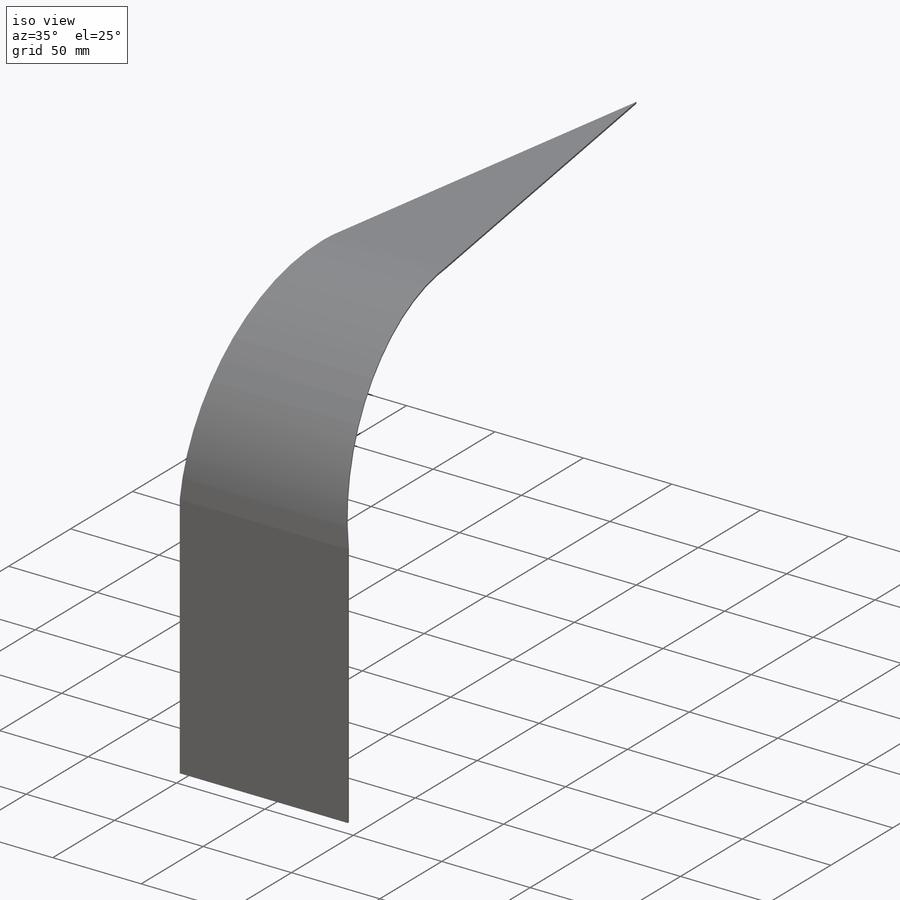
[diagram: iso view]
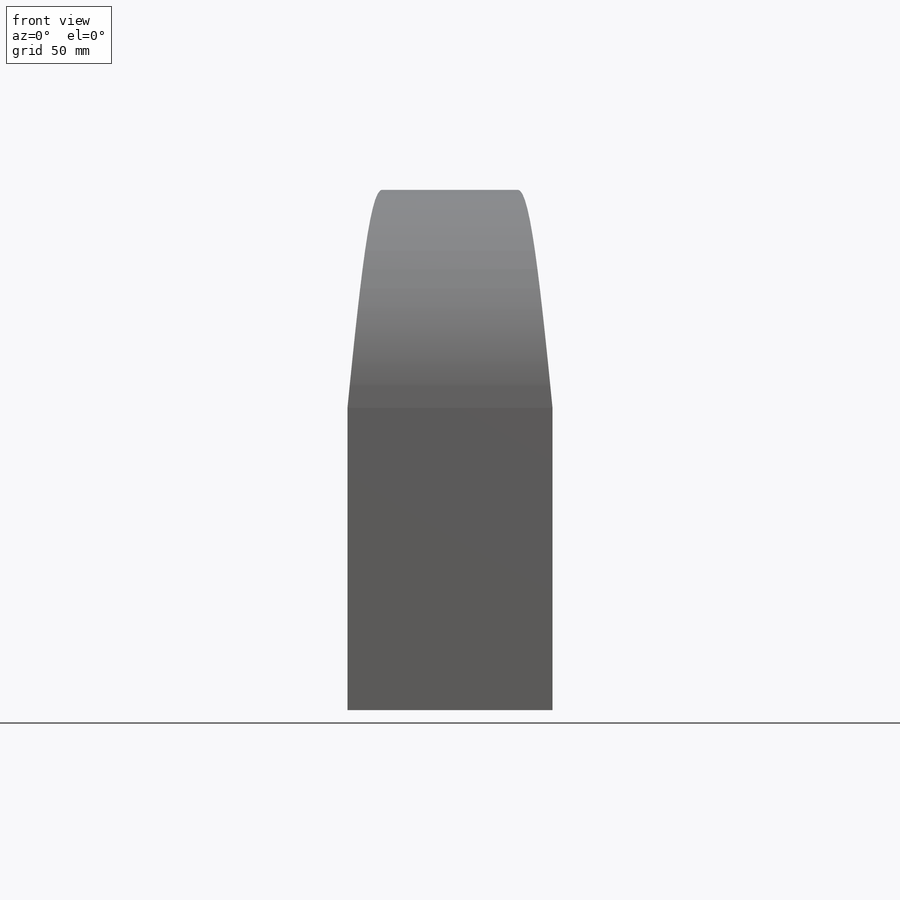
[diagram: front view]
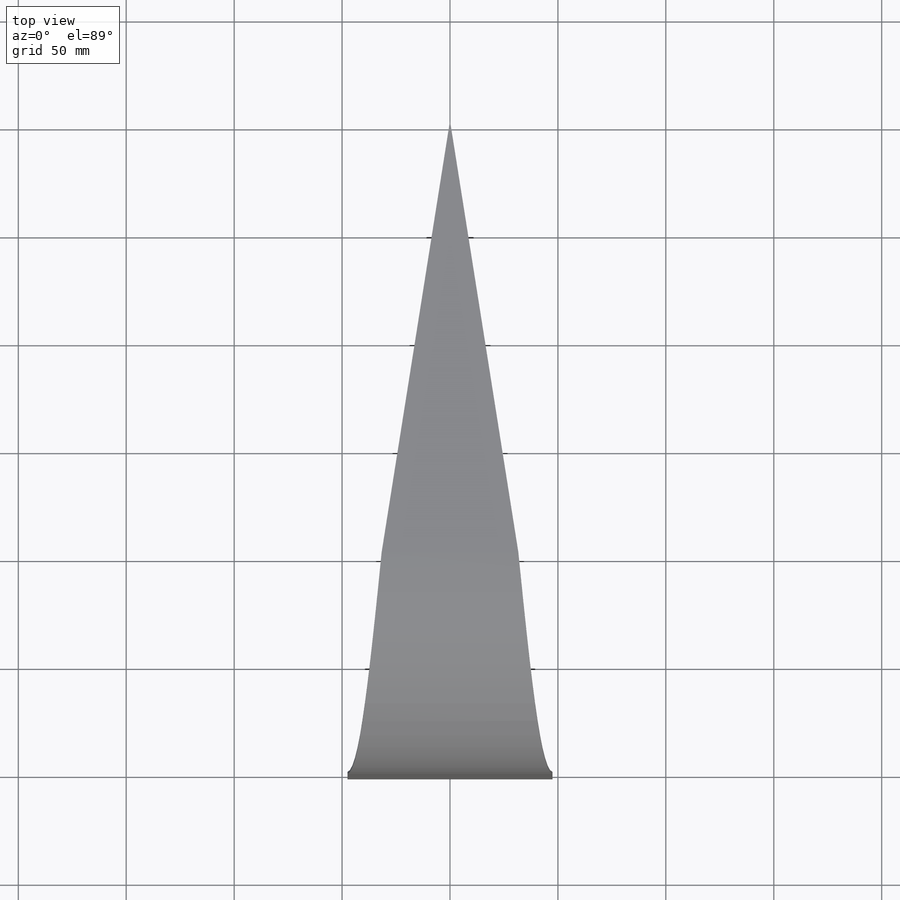
[diagram: top view]
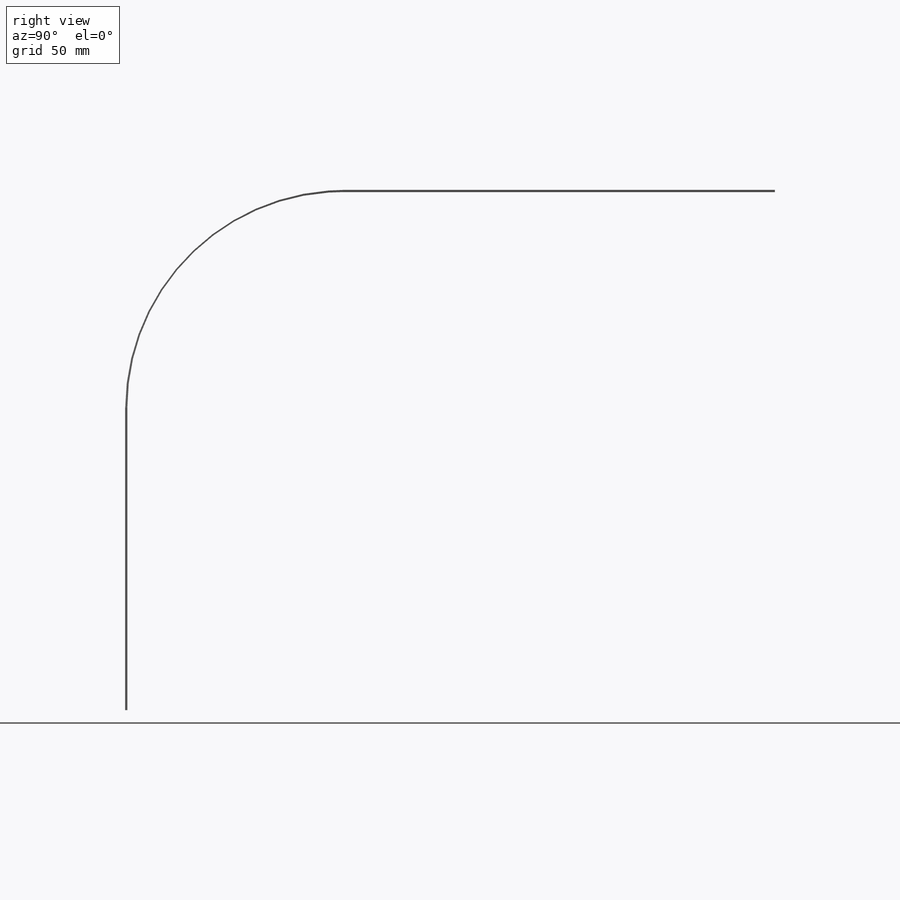
[diagram: right view]
SOLIDWORKS PART (.sldprt)
format: sldprt  version: not decoded by parser v0  size: 185,856 bytes
history: native  units: mm
features: sketch x6, plane x5, sheet_metal_op x2, material x1, extrude x1 + 1 further entry (+13 scaffold rows collapsed; 1 parser-record rows omitted)
feature tree (30):
  scaffold x13  (default folders/planes/origin — collapsed)
  material  "Material <nicht festgelegt>"
  plane  "Ebene vorne"
  plane  "Ebene oben"
  plane  "Ebene rechts"
  sketch  "Skizze1"  dims[c1.D1=~49.130067mm c2.D1=~26.23951deg c3.D1=~157.079633mm c3.D2=~49.130067mm c4.D2=~157.079633mm c4.D3=200.0mm]
  sheet_metal_op  "Blech1"  Dicke=1mm
  sheet_metal_op  "Basis-Blech1"
  plane  "Ebene1"  Offset=100mm
  sketch  "Skizze4"  dims[D1=1.0mm D2=95.0mm D3=100.0mm]
  plane  "Ebene2"
  sketch  "Skizze5"
  sketch  "3D-Skizze3"  dims[D1=100.0mm D2=100.0mm]
  sketch  "Skizze6"
  extrude  "Aufsatz-Linear austragen1"  Depth=140mm
  "Abwicklung1"
  sketch  "Biegung-Linien1"
  parser-record x1  (decoder bookkeeping rows leaked as tree rows — omitted from the tree; the rows remain in map.json)
decode coverage: 5 of 9 modeling features carry decoded parameters; 1 rows unclassified (native names shown)
note: ~ marks probable driven/reference dimensions
note: suppression state not decoded; provenance and decode notes live in map.json
